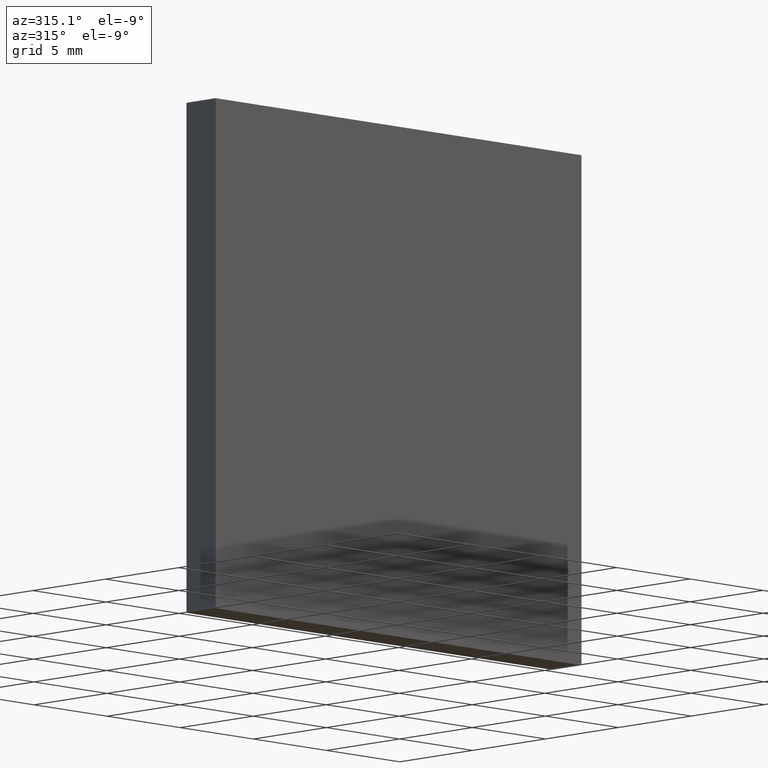
[diagram: clean part render]
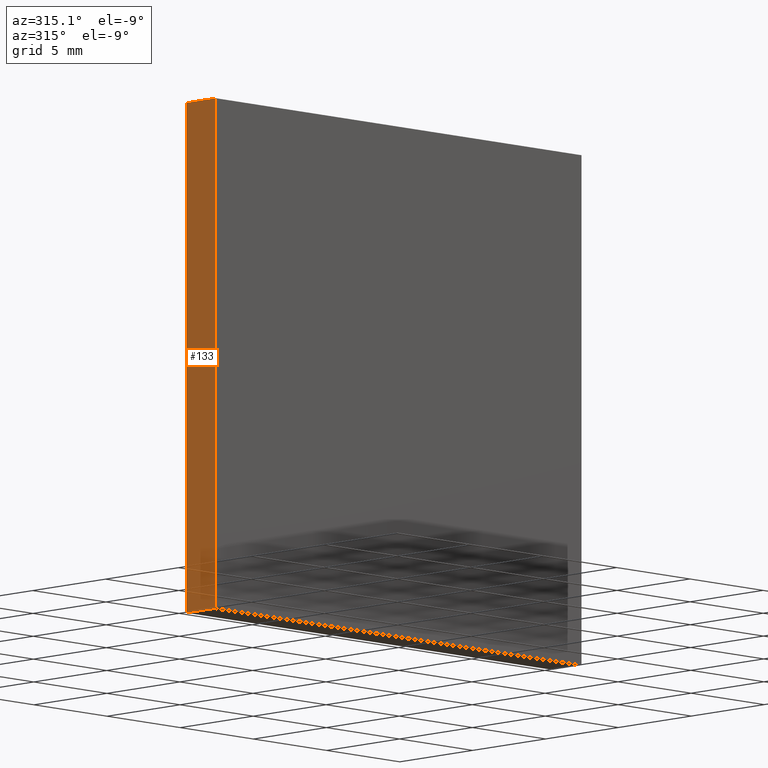
[diagram: same view with one face highlighted and labeled with its STEP entity id]
A machine part, auxiliary view. The second image highlights one B-rep face of the part: STEP entity #133.
In plain terms, the highlighted planar face has unit normal (1, 0, -0).
Its self-contained STEP definition (entity closure, byte-faithful):
#39 = CARTESIAN_POINT ( 'NONE',  ( -12.49999999999999500, 2.000000000000000000, 12.50000000000000000 ) ) ;
#42 = CARTESIAN_POINT ( 'NONE',  ( -12.49999999999999800, 2.000000000000000000, -12.50000000000000000 ) ) ;
#46 = VERTEX_POINT ( 'NONE', #42 ) ;
#53 = DIRECTION ( 'NONE',  ( 1.387778780781445700E-016, 0.0000000000000000000, 1.000000000000000000 ) ) ;
#54 = CARTESIAN_POINT ( 'NONE',  ( -12.49999999999999500, 2.000000000000000000, 12.50000000000000000 ) ) ;
#55 = VECTOR ( 'NONE', #152, 1000.000000000000000 ) ;
#56 = DIRECTION ( 'NONE',  ( -0.0000000000000000000, -1.000000000000000000, -0.0000000000000000000 ) ) ;
#58 = VERTEX_POINT ( 'NONE', #106 ) ;
#71 = EDGE_CURVE ( 'NONE', #131, #58, #101, .T. ) ;
#80 = AXIS2_PLACEMENT_3D ( 'NONE', #151, #103, #201 ) ;
#84 = EDGE_CURVE ( 'NONE', #165, #58, #192, .T. ) ;
#88 = CARTESIAN_POINT ( 'NONE',  ( -12.49999999999999800, 0.0000000000000000000, -12.50000000000000000 ) ) ;
#89 = EDGE_CURVE ( 'NONE', #46, #131, #107, .T. ) ;
#92 = CARTESIAN_POINT ( 'NONE',  ( -12.49999999999999800, 0.0000000000000000000, -12.50000000000000000 ) ) ;
#95 = ORIENTED_EDGE ( 'NONE', *, *, #89, .F. ) ;
#101 = LINE ( 'NONE', #54, #197 ) ;
#103 = DIRECTION ( 'NONE',  ( 1.000000000000000000, 0.0000000000000000000, -1.387778780781445700E-016 ) ) ;
#105 = DIRECTION ( 'NONE',  ( -0.0000000000000000000, -1.000000000000000000, -0.0000000000000000000 ) ) ;
#106 = CARTESIAN_POINT ( 'NONE',  ( -12.49999999999999500, 0.0000000000000000000, 12.50000000000000000 ) ) ;
#107 = LINE ( 'NONE', #170, #55 ) ;
#117 = EDGE_LOOP ( 'NONE', ( #175, #174, #95, #135 ) ) ;
#120 = PLANE ( 'NONE',  #80 ) ;
#131 = VERTEX_POINT ( 'NONE', #39 ) ;
#133 = ADVANCED_FACE ( 'NONE', ( #200 ), #120, .F. ) ;
#135 = ORIENTED_EDGE ( 'NONE', *, *, #177, .T. ) ;
#147 = VECTOR ( 'NONE', #53, 1000.000000000000000 ) ;
#151 = CARTESIAN_POINT ( 'NONE',  ( -12.49999999999999800, 2.000000000000000000, -12.50000000000000000 ) ) ;
#152 = DIRECTION ( 'NONE',  ( 1.387778780781445700E-016, 0.0000000000000000000, 1.000000000000000000 ) ) ;
#156 = VECTOR ( 'NONE', #56, 1000.000000000000000 ) ;
#165 = VERTEX_POINT ( 'NONE', #88 ) ;
#167 = LINE ( 'NONE', #191, #156 ) ;
#170 = CARTESIAN_POINT ( 'NONE',  ( -12.49999999999999800, 2.000000000000000000, -12.50000000000000000 ) ) ;
#174 = ORIENTED_EDGE ( 'NONE', *, *, #71, .F. ) ;
#175 = ORIENTED_EDGE ( 'NONE', *, *, #84, .T. ) ;
#177 = EDGE_CURVE ( 'NONE', #46, #165, #167, .T. ) ;
#191 = CARTESIAN_POINT ( 'NONE',  ( -12.49999999999999800, 2.000000000000000000, -12.50000000000000000 ) ) ;
#192 = LINE ( 'NONE', #92, #147 ) ;
#197 = VECTOR ( 'NONE', #105, 1000.000000000000000 ) ;
#200 = FACE_OUTER_BOUND ( 'NONE', #117, .T. ) ;
#201 = DIRECTION ( 'NONE',  ( -1.387778780781445700E-016, 0.0000000000000000000, -1.000000000000000000 ) ) ;